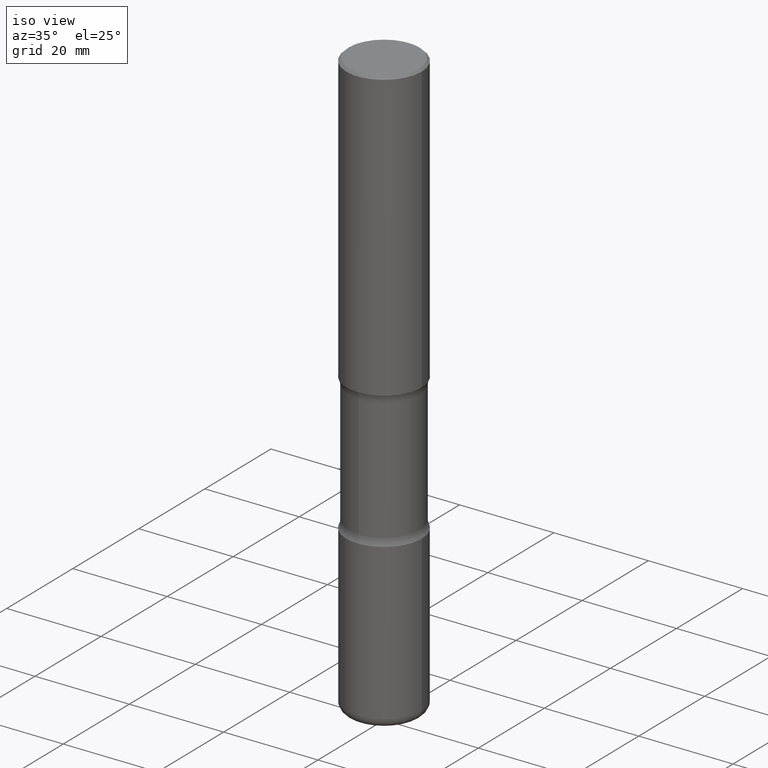
[diagram: clean part render]
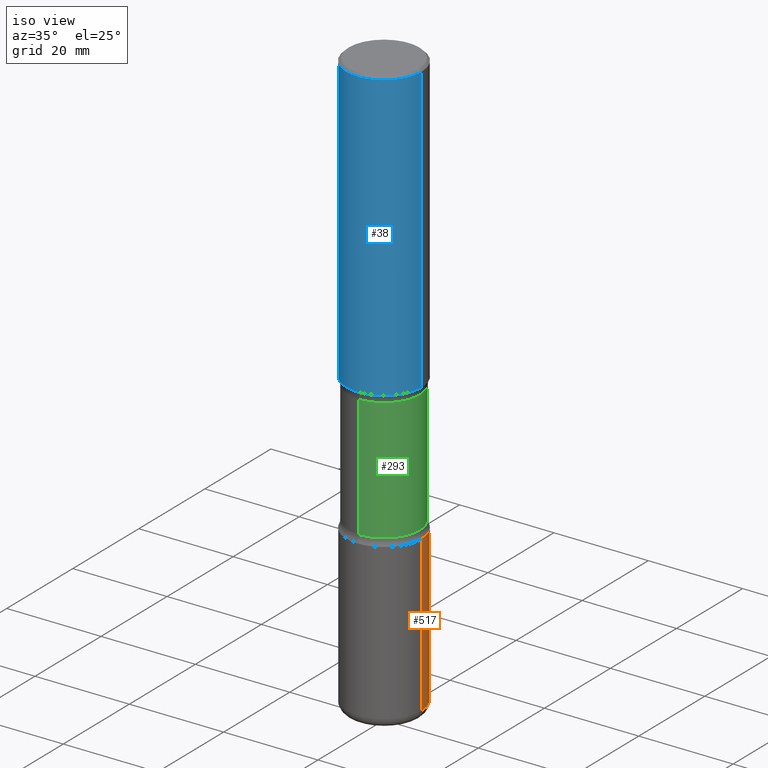
[diagram: same view with three faces highlighted in distinct colors, each labeled with its STEP entity id]
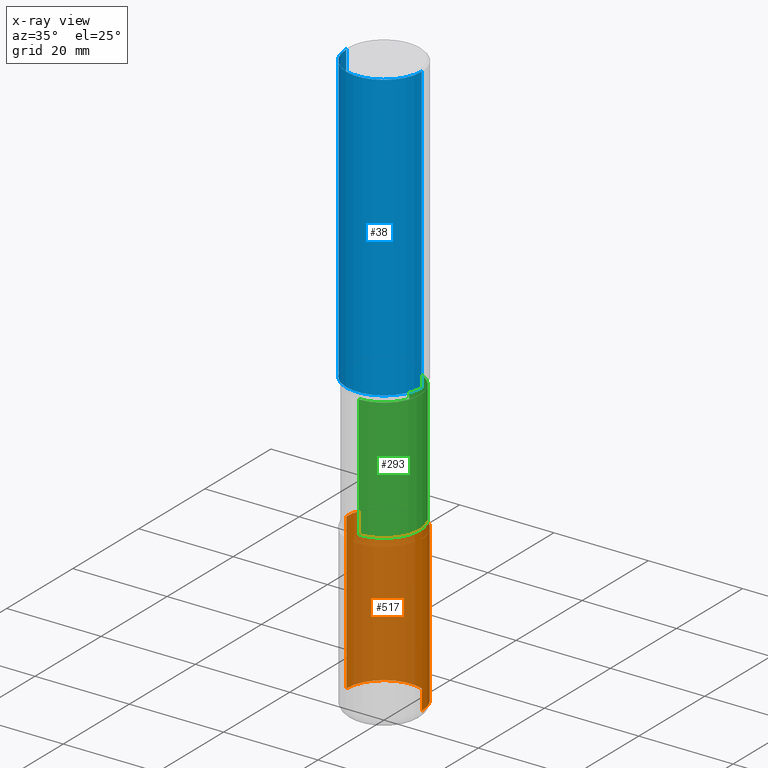
[diagram: x-ray of the same camera — body ghosted, the three highlighted faces saturated]
A machine part, iso view with three faces highlighted in distinct colors.
The next image is the same camera in x-ray (body ghosted, the three faces saturated) — at least one of them is partly hidden behind the body in this view.
Their STEP definitions:

[orange] entity #517 — the highlighted cylindrical surface (partial cylindrical patch) has radius 7.9997 mm, axis along (-0, 0, 1).
#10 = LINE ( 'NONE', #525, #83 ) ;
#28 = VERTEX_POINT ( 'NONE', #421 ) ;
#35 = FACE_OUTER_BOUND ( 'NONE', #544, .T. ) ;
#57 = VERTEX_POINT ( 'NONE', #185 ) ;
#83 = VECTOR ( 'NONE', #143, 39.37007874015748143 ) ;
#122 = DIRECTION ( 'NONE',  ( -2.445468806185136597E-29, 3.491481338843145583E-15, 1.000000000000000000 ) ) ;
#128 = AXIS2_PLACEMENT_3D ( 'NONE', #479, #178, #274 ) ;
#143 = DIRECTION ( 'NONE',  ( -2.445468806185136877E-29, 3.491481338843145188E-15, 1.000000000000000000 ) ) ;
#163 = CARTESIAN_POINT ( 'NONE',  ( 8.665029620955796311E-29, -1.237136582792292023E-14, -3.543300000000000782 ) ) ;
#178 = DIRECTION ( 'NONE',  ( -2.445468806185136597E-29, 3.491481338843145583E-15, 1.000000000000000000 ) ) ;
#185 = CARTESIAN_POINT ( 'NONE',  ( 0.3149500000000002853, -1.457064992326021168E-14, -3.543300000000000782 ) ) ;
#187 = EDGE_CURVE ( 'NONE', #57, #533, #491, .T. ) ;
#198 = ORIENTED_EDGE ( 'NONE', *, *, #187, .F. ) ;
#203 = ORIENTED_EDGE ( 'NONE', *, *, #354, .F. ) ;
#210 = VECTOR ( 'NONE', #518, 39.37007874015748143 ) ;
#216 = CARTESIAN_POINT ( 'NONE',  ( 0.000000000000000000, 0.000000000000000000, 0.000000000000000000 ) ) ;
#225 = CARTESIAN_POINT ( 'NONE',  ( -0.3149500000000002853, -1.240175233342592784E-14, -3.543300000000000782 ) ) ;
#236 = AXIS2_PLACEMENT_3D ( 'NONE', #163, #122, #301 ) ;
#246 = VERTEX_POINT ( 'NONE', #514 ) ;
#247 = DIRECTION ( 'NONE',  ( -2.445468806185136597E-29, 3.491481338843145583E-15, 1.000000000000000000 ) ) ;
#268 = DIRECTION ( 'NONE',  ( 1.000000000000000000, -6.982962677686267499E-15, 4.876176775795936353E-29 ) ) ;
#274 = DIRECTION ( 'NONE',  ( 1.000000000000000000, -6.982962677686267499E-15, 0.000000000000000000 ) ) ;
#301 = DIRECTION ( 'NONE',  ( 1.000000000000000000, -6.982962677686263555E-15, 0.000000000000000000 ) ) ;
#321 = ORIENTED_EDGE ( 'NONE', *, *, #436, .T. ) ;
#346 = EDGE_CURVE ( 'NONE', #28, #246, #464, .T. ) ;
#354 = EDGE_CURVE ( 'NONE', #28, #57, #440, .T. ) ;
#421 = CARTESIAN_POINT ( 'NONE',  ( 0.3149500000000003963, -1.910713162681910519E-14, -4.842599999999999127 ) ) ;
#425 = CYLINDRICAL_SURFACE ( 'NONE', #446, 0.3149500000000003408 ) ;
#435 = CARTESIAN_POINT ( 'NONE',  ( 0.3149500000000003408, -2.199284095337292237E-15, 1.535751875536931811E-29 ) ) ;
#436 = EDGE_CURVE ( 'NONE', #246, #533, #10, .T. ) ;
#440 = LINE ( 'NONE', #435, #210 ) ;
#446 = AXIS2_PLACEMENT_3D ( 'NONE', #216, #247, #268 ) ;
#464 = CIRCLE ( 'NONE', #128, 0.3149500000000003963 ) ;
#479 = CARTESIAN_POINT ( 'NONE',  ( 1.184242724083213993E-28, -1.690784753148181059E-14, -4.842599999999999127 ) ) ;
#491 = CIRCLE ( 'NONE', #236, 0.3149500000000002853 ) ;
#502 = ORIENTED_EDGE ( 'NONE', *, *, #346, .T. ) ;
#514 = CARTESIAN_POINT ( 'NONE',  ( -0.3149500000000003963, -1.466999318520537460E-14, -4.842599999999999127 ) ) ;
#517 = ADVANCED_FACE ( 'NONE', ( #35 ), #425, .T. ) ;
#518 = DIRECTION ( 'NONE',  ( -2.445468806185136877E-29, 3.491481338843145188E-15, 1.000000000000000000 ) ) ;
#525 = CARTESIAN_POINT ( 'NONE',  ( -0.3149500000000003408, 2.237854346276437957E-15, -1.549218606675784358E-29 ) ) ;
#533 = VERTEX_POINT ( 'NONE', #225 ) ;
#544 = EDGE_LOOP ( 'NONE', ( #502, #321, #198, #203 ) ) ;

[blue] entity #38 — the highlighted cylindrical surface (partial cylindrical patch) has radius 7.9997 mm, axis along (-0, 0, 1).
#16 = ORIENTED_EDGE ( 'NONE', *, *, #44, .F. ) ;
#17 = DIRECTION ( 'NONE',  ( 1.000000000000000000, -6.982962677686265922E-15, 0.000000000000000000 ) ) ;
#30 = CIRCLE ( 'NONE', #72, 0.3149499999999998967 ) ;
#38 = ADVANCED_FACE ( 'NONE', ( #84 ), #344, .T. ) ;
#40 = CARTESIAN_POINT ( 'NONE',  ( 0.000000000000000000, 0.000000000000000000, 0.000000000000000000 ) ) ;
#41 = DIRECTION ( 'NONE',  ( 1.000000000000000000, -6.982962677686265922E-15, 0.000000000000000000 ) ) ;
#44 = EDGE_CURVE ( 'NONE', #63, #159, #513, .T. ) ;
#51 = CARTESIAN_POINT ( 'NONE',  ( 0.3149500000000000077, -2.199284095337289871E-15, 1.535751875536930130E-29 ) ) ;
#53 = AXIS2_PLACEMENT_3D ( 'NONE', #494, #59, #17 ) ;
#55 = DIRECTION ( 'NONE',  ( -2.445468806185136877E-29, 3.491481338843145188E-15, 1.000000000000000000 ) ) ;
#59 = DIRECTION ( 'NONE',  ( -2.445468806185136597E-29, 3.491481338843145583E-15, 1.000000000000000000 ) ) ;
#63 = VERTEX_POINT ( 'NONE', #108 ) ;
#72 = AXIS2_PLACEMENT_3D ( 'NONE', #337, #427, #41 ) ;
#84 = FACE_OUTER_BOUND ( 'NONE', #333, .T. ) ;
#104 = VERTEX_POINT ( 'NONE', #554 ) ;
#108 = CARTESIAN_POINT ( 'NONE',  ( -0.3149500000000001743, -1.989631258794842718E-15, -2.401600000000000623 ) ) ;
#124 = VERTEX_POINT ( 'NONE', #460 ) ;
#136 = AXIS2_PLACEMENT_3D ( 'NONE', #40, #300, #221 ) ;
#152 = ORIENTED_EDGE ( 'NONE', *, *, #423, .T. ) ;
#159 = VERTEX_POINT ( 'NONE', #307 ) ;
#193 = EDGE_CURVE ( 'NONE', #159, #124, #30, .T. ) ;
#221 = DIRECTION ( 'NONE',  ( 1.000000000000000000, -6.982962677686266711E-15, 4.876176775795936353E-29 ) ) ;
#300 = DIRECTION ( 'NONE',  ( -2.445468806185136597E-29, 3.491481338843145583E-15, 1.000000000000000000 ) ) ;
#305 = EDGE_CURVE ( 'NONE', #63, #104, #541, .T. ) ;
#307 = CARTESIAN_POINT ( 'NONE',  ( -0.3149499999999998967, 2.129454468560425784E-15, -0.02000000000000006981 ) ) ;
#333 = EDGE_LOOP ( 'NONE', ( #16, #369, #152, #390 ) ) ;
#337 = CARTESIAN_POINT ( 'NONE',  ( 4.890937612370289799E-31, -6.982962677686315028E-17, -0.02000000000000006981 ) ) ;
#344 = CYLINDRICAL_SURFACE ( 'NONE', #136, 0.3149500000000000077 ) ;
#369 = ORIENTED_EDGE ( 'NONE', *, *, #305, .T. ) ;
#385 = VECTOR ( 'NONE', #400, 39.37007874015748143 ) ;
#390 = ORIENTED_EDGE ( 'NONE', *, *, #193, .F. ) ;
#400 = DIRECTION ( 'NONE',  ( -2.445468806185136877E-29, 3.491481338843145188E-15, 1.000000000000000000 ) ) ;
#423 = EDGE_CURVE ( 'NONE', #104, #124, #443, .T. ) ;
#427 = DIRECTION ( 'NONE',  ( -2.445468806185136597E-29, 3.491481338843145583E-15, 1.000000000000000000 ) ) ;
#443 = LINE ( 'NONE', #51, #385 ) ;
#452 = VECTOR ( 'NONE', #55, 39.37007874015748143 ) ;
#460 = CARTESIAN_POINT ( 'NONE',  ( 0.3149499999999998967, -2.230543471175006266E-15, -0.02000000000000006981 ) ) ;
#461 = CARTESIAN_POINT ( 'NONE',  ( -0.3149500000000000077, 2.237854346276435590E-15, -1.549218606675782676E-29 ) ) ;
#494 = CARTESIAN_POINT ( 'NONE',  ( 5.873037884934225470E-29, -8.385141583365698841E-15, -2.401600000000000623 ) ) ;
#513 = LINE ( 'NONE', #461, #452 ) ;
#541 = CIRCLE ( 'NONE', #53, 0.3149500000000001743 ) ;
#554 = CARTESIAN_POINT ( 'NONE',  ( 0.3149500000000001743, -1.058442567870299029E-14, -2.401600000000000623 ) ) ;

[green] entity #293 — the highlighted cylindrical surface (partial cylindrical patch) has radius 7.5997 mm, axis along (0, -0, -1).
#5 = CARTESIAN_POINT ( 'NONE',  ( 2.089302433163816004E-15, 0.2991999999999878646, -3.482559259964997711 ) ) ;
#13 = CARTESIAN_POINT ( 'NONE',  ( 8.512269027981096619E-29, -1.216533539121887276E-14, -3.482559259964996379 ) ) ;
#24 = VERTEX_POINT ( 'NONE', #338 ) ;
#46 = EDGE_CURVE ( 'NONE', #24, #259, #149, .T. ) ;
#90 = EDGE_CURVE ( 'NONE', #259, #542, #395, .T. ) ;
#93 = CARTESIAN_POINT ( 'NONE',  ( -2.052661000933121010E-15, -0.2992000000000170634, -4.921299999999999564 ) ) ;
#102 = CARTESIAN_POINT ( 'NONE',  ( -2.106687422665607929E-15, -0.2992000000000121784, -3.482559259964995491 ) ) ;
#109 = DIRECTION ( 'NONE',  ( 2.514961011121466661E-29, -3.391964546123646738E-15, -1.000000000000000000 ) ) ;
#126 = CARTESIAN_POINT ( 'NONE',  ( -2.106687422665635539E-15, -0.2992000000000087367, -2.462340740035004139 ) ) ;
#147 = DIRECTION ( 'NONE',  ( 6.982962677686265922E-15, 1.000000000000000000, -3.652203200085913145E-15 ) ) ;
#148 = DIRECTION ( 'NONE',  ( 2.514961011121466661E-29, -3.391964546123646738E-15, -1.000000000000000000 ) ) ;
#149 = CIRCLE ( 'NONE', #519, 0.2992000000000000215 ) ;
#195 = CYLINDRICAL_SURFACE ( 'NONE', #419, 0.2992000000000000215 ) ;
#211 = ORIENTED_EDGE ( 'NONE', *, *, #463, .F. ) ;
#233 = EDGE_CURVE ( 'NONE', #24, #322, #309, .T. ) ;
#248 = VECTOR ( 'NONE', #477, 39.37007874015748143 ) ;
#252 = DIRECTION ( 'NONE',  ( 6.982962677686265922E-15, 1.000000000000000000, -3.652203200085913145E-15 ) ) ;
#259 = VERTEX_POINT ( 'NONE', #126 ) ;
#293 = ADVANCED_FACE ( 'NONE', ( #329 ), #195, .T. ) ;
#303 = CIRCLE ( 'NONE', #420, 0.2992000000000000215 ) ;
#309 = LINE ( 'NONE', #389, #248 ) ;
#322 = VERTEX_POINT ( 'NONE', #5 ) ;
#325 = DIRECTION ( 'NONE',  ( 6.982962677686265922E-15, 1.000000000000000000, -3.652203200085913145E-15 ) ) ;
#329 = FACE_OUTER_BOUND ( 'NONE', #496, .T. ) ;
#338 = CARTESIAN_POINT ( 'NONE',  ( 2.089302433163790366E-15, 0.2991999999999913062, -2.462340740035006359 ) ) ;
#361 = CARTESIAN_POINT ( 'NONE',  ( 1.213064589428117588E-28, -1.704549297248130466E-14, -4.921300000000000452 ) ) ;
#362 = CARTESIAN_POINT ( 'NONE',  ( 5.946459227533120264E-29, -8.704790342317601483E-15, -2.462340740035005471 ) ) ;
#389 = CARTESIAN_POINT ( 'NONE',  ( 2.089302433163852292E-15, 0.2991999999999829796, -4.921300000000002228 ) ) ;
#395 = LINE ( 'NONE', #93, #509 ) ;
#408 = ORIENTED_EDGE ( 'NONE', *, *, #90, .T. ) ;
#417 = ORIENTED_EDGE ( 'NONE', *, *, #46, .T. ) ;
#419 = AXIS2_PLACEMENT_3D ( 'NONE', #361, #148, #325 ) ;
#420 = AXIS2_PLACEMENT_3D ( 'NONE', #13, #529, #147 ) ;
#438 = DIRECTION ( 'NONE',  ( 2.514961011121466661E-29, -3.391964546123647133E-15, -1.000000000000000000 ) ) ;
#463 = EDGE_CURVE ( 'NONE', #322, #542, #303, .T. ) ;
#470 = ORIENTED_EDGE ( 'NONE', *, *, #233, .F. ) ;
#477 = DIRECTION ( 'NONE',  ( 2.514961011121466661E-29, -3.391964546123647133E-15, -1.000000000000000000 ) ) ;
#496 = EDGE_LOOP ( 'NONE', ( #417, #408, #211, #470 ) ) ;
#509 = VECTOR ( 'NONE', #438, 39.37007874015748143 ) ;
#519 = AXIS2_PLACEMENT_3D ( 'NONE', #362, #109, #252 ) ;
#529 = DIRECTION ( 'NONE',  ( 2.514961011121466661E-29, -3.391964546123646738E-15, -1.000000000000000000 ) ) ;
#542 = VERTEX_POINT ( 'NONE', #102 ) ;